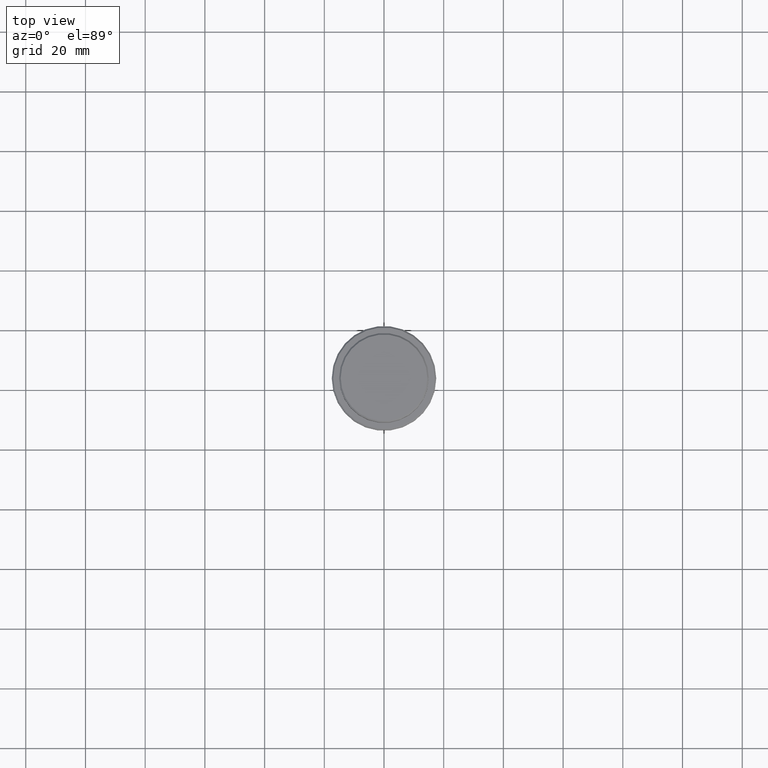
[diagram: clean part render]
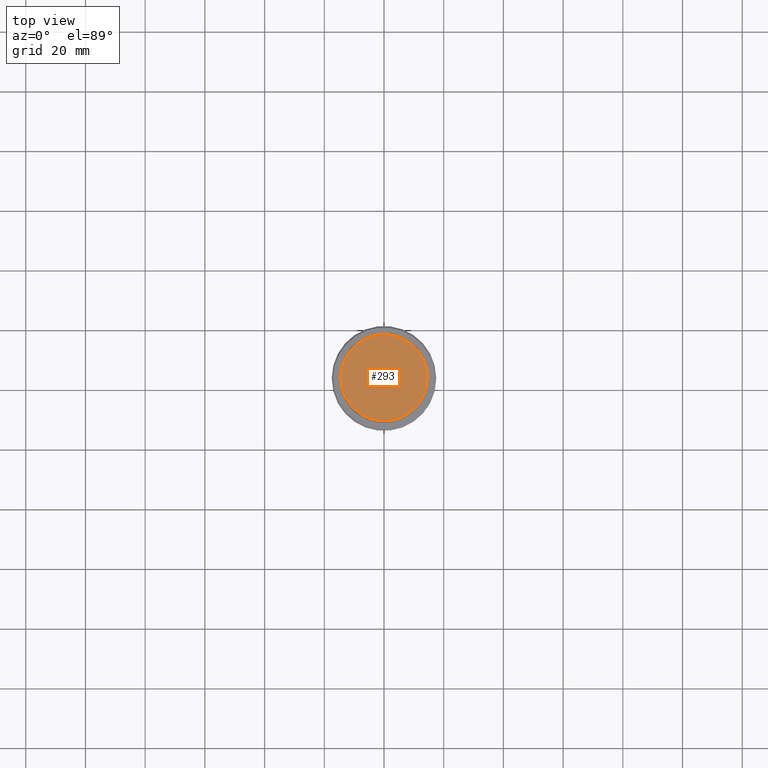
[diagram: same view with one face highlighted and labeled with its STEP entity id]
A machine part, top view. The second image highlights one B-rep face of the part: STEP entity #293.
In plain terms, the highlighted planar face has unit normal (0, -0, 1).
Its self-contained STEP definition (entity closure, byte-faithful):
#6 = CIRCLE ( 'NONE', #421, 14.49999999999998401 ) ;
#65 = EDGE_CURVE ( 'NONE', #255, #276, #6, .T. ) ;
#71 = CARTESIAN_POINT ( 'NONE',  ( 14.49999999999998401, 1.806354028742345013E-15, 0.000000000000000000 ) ) ;
#183 = DIRECTION ( 'NONE',  ( 1.000000000000000000, 0.000000000000000000, 0.000000000000000000 ) ) ;
#204 = DIRECTION ( 'NONE',  ( 1.000000000000000000, 0.000000000000000000, 0.000000000000000000 ) ) ;
#255 = VERTEX_POINT ( 'NONE', #1135 ) ;
#276 = VERTEX_POINT ( 'NONE', #71 ) ;
#285 = ORIENTED_EDGE ( 'NONE', *, *, #65, .T. ) ;
#293 = ADVANCED_FACE ( 'NONE', ( #1296 ), #635, .T. ) ;
#323 = CIRCLE ( 'NONE', #531, 14.49999999999998401 ) ;
#421 = AXIS2_PLACEMENT_3D ( 'NONE', #678, #1100, #1318 ) ;
#523 = CARTESIAN_POINT ( 'NONE',  ( 0.000000000000000000, 0.000000000000000000, 0.000000000000000000 ) ) ;
#531 = AXIS2_PLACEMENT_3D ( 'NONE', #1293, #1371, #204 ) ;
#635 = PLANE ( 'NONE',  #801 ) ;
#678 = CARTESIAN_POINT ( 'NONE',  ( 0.000000000000000000, 0.000000000000000000, 0.000000000000000000 ) ) ;
#749 = ORIENTED_EDGE ( 'NONE', *, *, #858, .T. ) ;
#801 = AXIS2_PLACEMENT_3D ( 'NONE', #523, #1389, #183 ) ;
#858 = EDGE_CURVE ( 'NONE', #276, #255, #323, .T. ) ;
#1060 = EDGE_LOOP ( 'NONE', ( #285, #749 ) ) ;
#1100 = DIRECTION ( 'NONE',  ( -0.000000000000000000, -0.000000000000000000, 1.000000000000000000 ) ) ;
#1135 = CARTESIAN_POINT ( 'NONE',  ( -14.49999999999998401, 0.000000000000000000, 0.000000000000000000 ) ) ;
#1293 = CARTESIAN_POINT ( 'NONE',  ( 0.000000000000000000, 0.000000000000000000, 0.000000000000000000 ) ) ;
#1296 = FACE_OUTER_BOUND ( 'NONE', #1060, .T. ) ;
#1318 = DIRECTION ( 'NONE',  ( 1.000000000000000000, 0.000000000000000000, 0.000000000000000000 ) ) ;
#1371 = DIRECTION ( 'NONE',  ( -0.000000000000000000, -0.000000000000000000, 1.000000000000000000 ) ) ;
#1389 = DIRECTION ( 'NONE',  ( 0.000000000000000000, -0.000000000000000000, 1.000000000000000000 ) ) ;